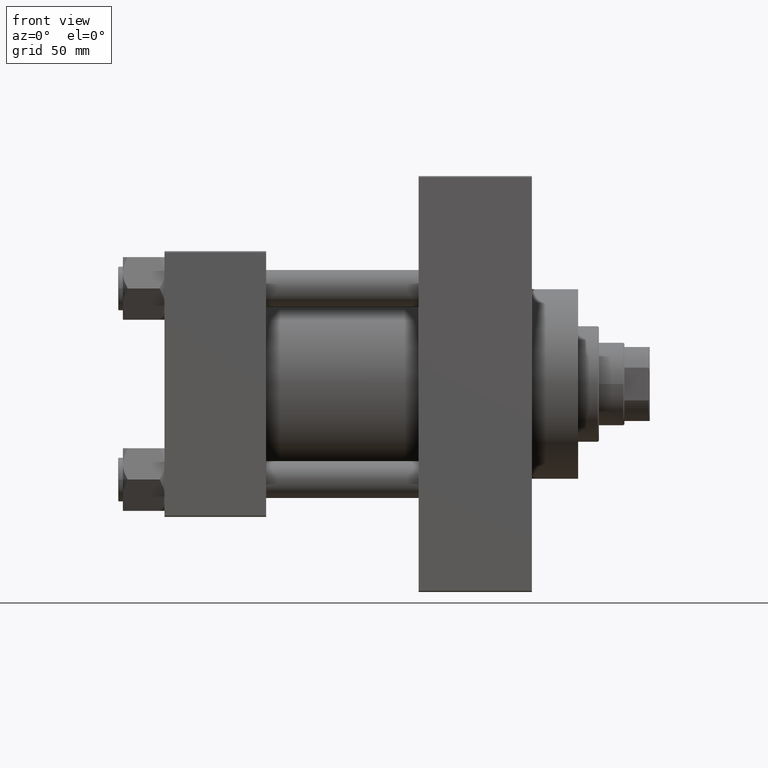
[diagram: clean part render]
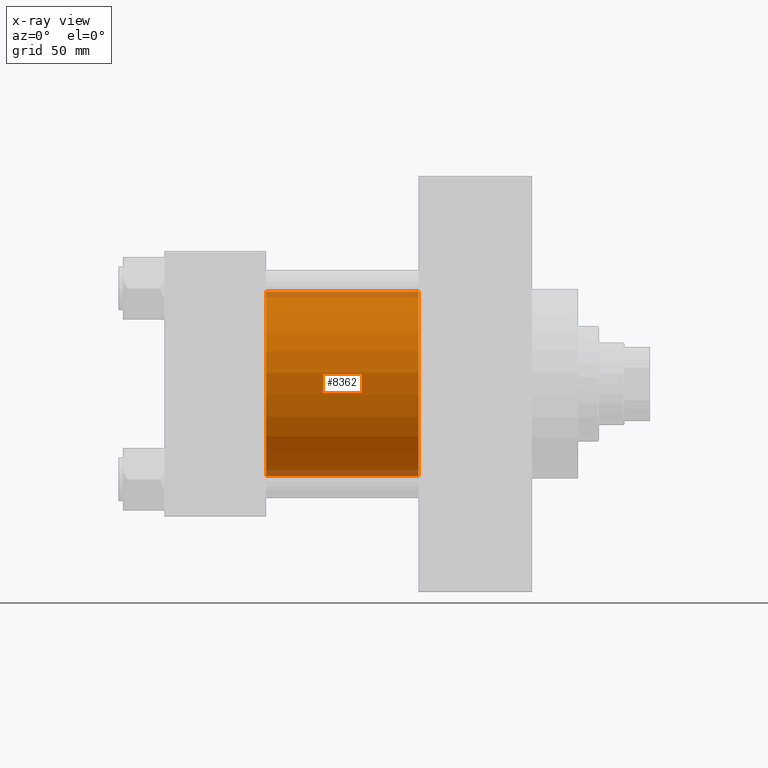
[diagram: x-ray — body ghosted, one internal face saturated and labeled with its STEP entity id]
A machine part, front view, then the same camera in x-ray: the body is ghosted and one INTERNAL B-rep face — a face not visible from any outside direction — is saturated and labeled: STEP entity #8362.
In plain terms, the highlighted cylindrical surface (partial cylindrical patch) has radius 40 mm, axis along (-1, -0, -0).
Its self-contained STEP definition (entity closure, byte-faithful):
#2 = CARTESIAN_POINT ( 'NONE',  ( 110.0000000000000000, 2.296501982624201990E-15, -40.00000000000000000 ) ) ;
#87 = DIRECTION ( 'NONE',  ( 0.000000000000000000, 0.000000000000000000, 1.000000000000000000 ) ) ;
#2390 = AXIS2_PLACEMENT_3D ( 'NONE', #42360, #41867, #46109 ) ;
#3982 = DIRECTION ( 'NONE',  ( 1.000000000000000000, 0.000000000000000000, 0.000000000000000000 ) ) ;
#4416 = EDGE_CURVE ( 'NONE', #7380, #18793, #19355, .T. ) ;
#4466 = CIRCLE ( 'NONE', #28443, 40.00000000000000000 ) ;
#5374 = VERTEX_POINT ( 'NONE', #15755 ) ;
#5578 = CIRCLE ( 'NONE', #2390, 40.00000000000000000 ) ;
#7215 = AXIS2_PLACEMENT_3D ( 'NONE', #31104, #27361, #87 ) ;
#7380 = VERTEX_POINT ( 'NONE', #34350 ) ;
#7389 = EDGE_CURVE ( 'NONE', #7380, #23069, #5578, .T. ) ;
#8362 = ADVANCED_FACE ( 'NONE', ( #41622 ), #26355, .F. ) ;
#11234 = ORIENTED_EDGE ( 'NONE', *, *, #4416, .F. ) ;
#11837 = DIRECTION ( 'NONE',  ( -1.000000000000000000, -0.000000000000000000, -0.000000000000000000 ) ) ;
#14500 = CARTESIAN_POINT ( 'NONE',  ( 44.00000000000000000, -2.602085213965210642E-15, 0.000000000000000000 ) ) ;
#15458 = EDGE_CURVE ( 'NONE', #23069, #5374, #35019, .T. ) ;
#15755 = CARTESIAN_POINT ( 'NONE',  ( 44.00000000000000000, 2.296501982624201990E-15, -40.00000000000000000 ) ) ;
#16682 = ORIENTED_EDGE ( 'NONE', *, *, #15458, .T. ) ;
#18793 = VERTEX_POINT ( 'NONE', #20941 ) ;
#19355 = LINE ( 'NONE', #30865, #46330 ) ;
#20941 = CARTESIAN_POINT ( 'NONE',  ( 44.00000000000000000, -2.602085213965210642E-15, 40.00000000000000000 ) ) ;
#23069 = VERTEX_POINT ( 'NONE', #37082 ) ;
#24362 = EDGE_CURVE ( 'NONE', #18793, #5374, #4466, .T. ) ;
#26355 = CYLINDRICAL_SURFACE ( 'NONE', #7215, 40.00000000000000000 ) ;
#27361 = DIRECTION ( 'NONE',  ( -1.000000000000000000, -0.000000000000000000, -0.000000000000000000 ) ) ;
#28443 = AXIS2_PLACEMENT_3D ( 'NONE', #14500, #3982, #41533 ) ;
#30865 = CARTESIAN_POINT ( 'NONE',  ( 110.0000000000000000, -2.602085213965210642E-15, 40.00000000000000000 ) ) ;
#31104 = CARTESIAN_POINT ( 'NONE',  ( 110.0000000000000000, -2.602085213965210642E-15, 0.000000000000000000 ) ) ;
#31268 = DIRECTION ( 'NONE',  ( -1.000000000000000000, -0.000000000000000000, -0.000000000000000000 ) ) ;
#31485 = VECTOR ( 'NONE', #31268, 1000.000000000000000 ) ;
#34350 = CARTESIAN_POINT ( 'NONE',  ( 110.0000000000000000, -2.602085213965210642E-15, 40.00000000000000000 ) ) ;
#35019 = LINE ( 'NONE', #2, #31485 ) ;
#37082 = CARTESIAN_POINT ( 'NONE',  ( 110.0000000000000000, 2.296501982624201990E-15, -40.00000000000000000 ) ) ;
#38543 = ORIENTED_EDGE ( 'NONE', *, *, #7389, .T. ) ;
#40273 = EDGE_LOOP ( 'NONE', ( #38543, #16682, #47026, #11234 ) ) ;
#41533 = DIRECTION ( 'NONE',  ( 0.000000000000000000, 0.000000000000000000, -1.000000000000000000 ) ) ;
#41622 = FACE_OUTER_BOUND ( 'NONE', #40273, .T. ) ;
#41867 = DIRECTION ( 'NONE',  ( 1.000000000000000000, 0.000000000000000000, 0.000000000000000000 ) ) ;
#42360 = CARTESIAN_POINT ( 'NONE',  ( 110.0000000000000000, -2.602085213965210642E-15, 0.000000000000000000 ) ) ;
#46109 = DIRECTION ( 'NONE',  ( 0.000000000000000000, 0.000000000000000000, -1.000000000000000000 ) ) ;
#46330 = VECTOR ( 'NONE', #11837, 1000.000000000000000 ) ;
#47026 = ORIENTED_EDGE ( 'NONE', *, *, #24362, .F. ) ;